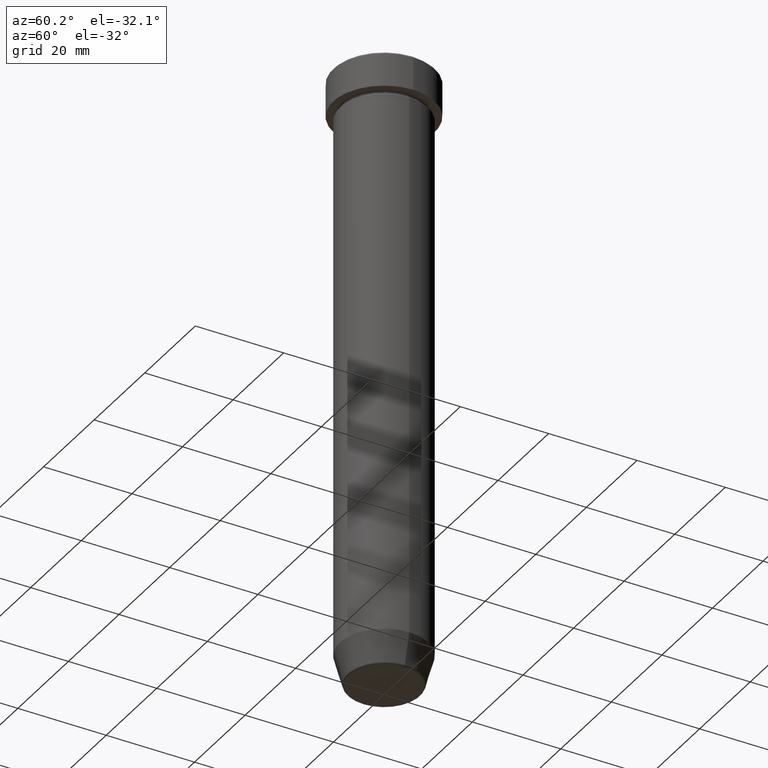
[diagram: clean part render]
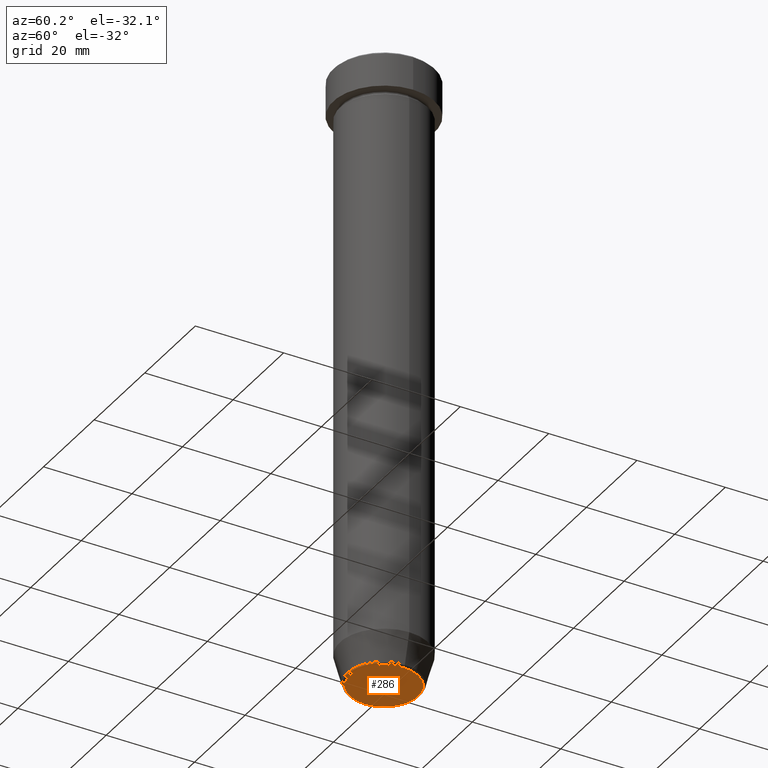
[diagram: same view with one face highlighted and labeled with its STEP entity id]
A machine part, auxiliary view. The second image highlights one B-rep face of the part: STEP entity #286.
In plain terms, the highlighted planar face has unit normal (0, -0, 1).
Its self-contained STEP definition (entity closure, byte-faithful):
#3 = AXIS2_PLACEMENT_3D ( 'NONE', #437, #260, #528 ) ;
#21 = CIRCLE ( 'NONE', #385, 7.740692158992648508 ) ;
#70 = ORIENTED_EDGE ( 'NONE', *, *, #72, .T. ) ;
#72 = EDGE_CURVE ( 'NONE', #282, #185, #139, .T. ) ;
#81 = CARTESIAN_POINT ( 'NONE',  ( -7.740692158992648508, 9.775343368540027302E-16, -139.9999999999999716 ) ) ;
#128 = DIRECTION ( 'NONE',  ( 0.000000000000000000, -0.000000000000000000, 1.000000000000000000 ) ) ;
#139 = CIRCLE ( 'NONE', #3, 7.740692158992648508 ) ;
#141 = AXIS2_PLACEMENT_3D ( 'NONE', #409, #128, #319 ) ;
#185 = VERTEX_POINT ( 'NONE', #81 ) ;
#226 = PLANE ( 'NONE',  #141 ) ;
#260 = DIRECTION ( 'NONE',  ( 0.000000000000000000, 0.000000000000000000, -1.000000000000000000 ) ) ;
#282 = VERTEX_POINT ( 'NONE', #367 ) ;
#286 = ADVANCED_FACE ( 'NONE', ( #356 ), #226, .F. ) ;
#301 = EDGE_LOOP ( 'NONE', ( #70, #497 ) ) ;
#319 = DIRECTION ( 'NONE',  ( 1.000000000000000000, 0.000000000000000000, 0.000000000000000000 ) ) ;
#325 = CARTESIAN_POINT ( 'NONE',  ( 0.000000000000000000, 0.000000000000000000, -139.9999999999999716 ) ) ;
#356 = FACE_OUTER_BOUND ( 'NONE', #301, .T. ) ;
#365 = EDGE_CURVE ( 'NONE', #185, #282, #21, .T. ) ;
#367 = CARTESIAN_POINT ( 'NONE',  ( 7.740692158992648508, 0.000000000000000000, -139.9999999999999716 ) ) ;
#373 = DIRECTION ( 'NONE',  ( 1.000000000000000000, 0.000000000000000000, 0.000000000000000000 ) ) ;
#385 = AXIS2_PLACEMENT_3D ( 'NONE', #325, #471, #373 ) ;
#409 = CARTESIAN_POINT ( 'NONE',  ( 0.000000000000000000, 1.102182119232617911E-14, -139.9999999999999716 ) ) ;
#437 = CARTESIAN_POINT ( 'NONE',  ( 0.000000000000000000, 0.000000000000000000, -139.9999999999999716 ) ) ;
#471 = DIRECTION ( 'NONE',  ( 0.000000000000000000, 0.000000000000000000, -1.000000000000000000 ) ) ;
#497 = ORIENTED_EDGE ( 'NONE', *, *, #365, .T. ) ;
#528 = DIRECTION ( 'NONE',  ( 1.000000000000000000, 0.000000000000000000, 0.000000000000000000 ) ) ;